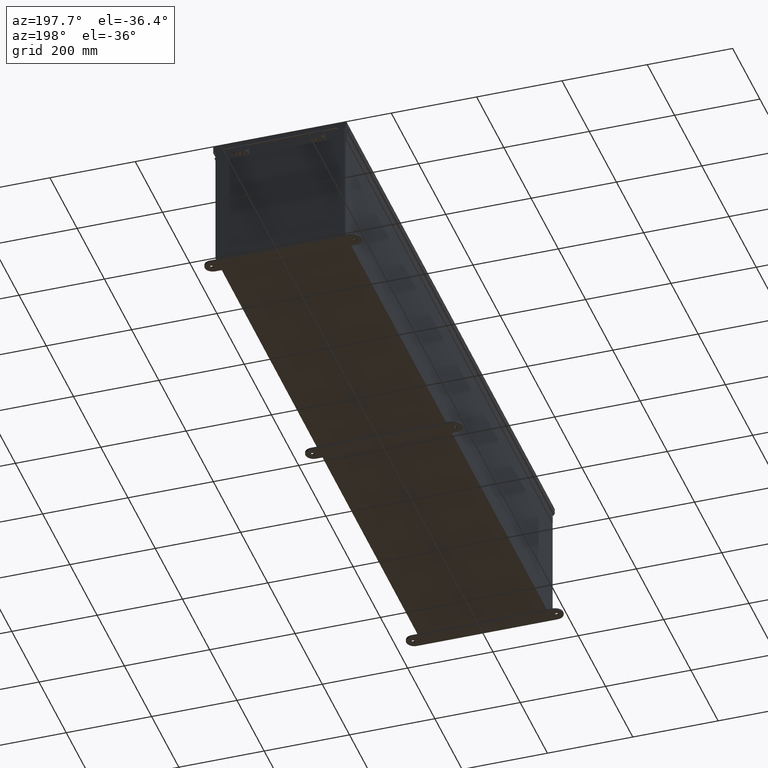
[diagram: clean part render]
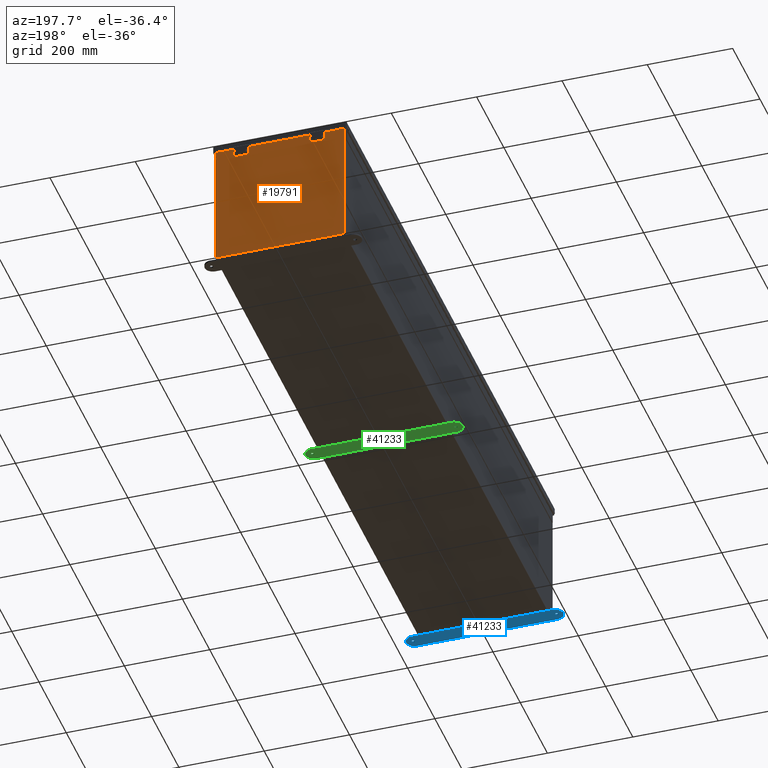
[diagram: same view with three faces highlighted in distinct colors, each labeled with its STEP entity id]
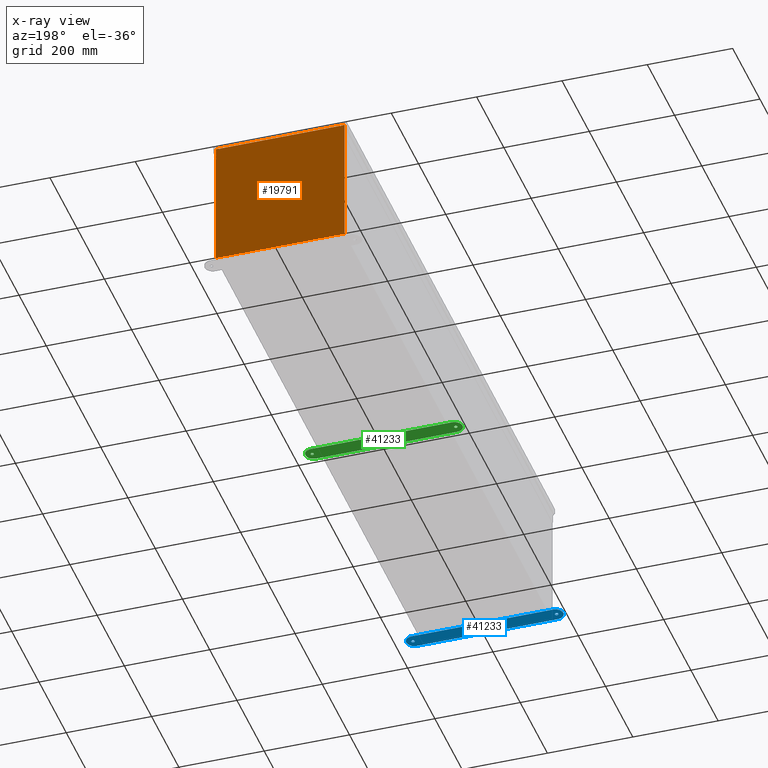
[diagram: x-ray of the same camera — body ghosted, the three highlighted faces saturated]
A machine part, auxiliary view with three faces highlighted in distinct colors.
The next image is the same camera in x-ray (body ghosted, the three faces saturated) — at least one of them is partly hidden behind the body in this view.
Their STEP definitions:

[orange] entity #19791 — the highlighted planar face has unit normal (0, -1, 0).
#473 = VECTOR ( 'NONE', #40752, 39.37007874015748100 ) ;
#2217 = CARTESIAN_POINT ( 'NONE',  ( -5.925300000000000000, 0.0000000000000000000, 5.925300000000002700 ) ) ;
#2291 = FACE_OUTER_BOUND ( 'NONE', #19772, .T. ) ;
#2365 = EDGE_CURVE ( 'NONE', #19320, #39952, #39111, .T. ) ;
#2399 = DIRECTION ( 'NONE',  ( 0.0000000000000000000, 0.0000000000000000000, -1.000000000000000000 ) ) ;
#2479 = VERTEX_POINT ( 'NONE', #20774 ) ;
#2612 = DIRECTION ( 'NONE',  ( 0.0000000000000000000, 0.0000000000000000000, -1.000000000000000000 ) ) ;
#3299 = VERTEX_POINT ( 'NONE', #18935 ) ;
#3359 = LINE ( 'NONE', #18377, #37137 ) ;
#5002 = CIRCLE ( 'NONE', #42503, 0.01867500000000058700 ) ;
#6107 = VERTEX_POINT ( 'NONE', #8690 ) ;
#6660 = ORIENTED_EDGE ( 'NONE', *, *, #36570, .F. ) ;
#6964 = EDGE_CURVE ( 'NONE', #43124, #26347, #27420, .T. ) ;
#7060 = VECTOR ( 'NONE', #17616, 39.37007874015748100 ) ;
#7256 = VECTOR ( 'NONE', #39886, 39.37007874015748100 ) ;
#7857 = CARTESIAN_POINT ( 'NONE',  ( -5.582299999999999200, 0.0000000000000000000, 5.912300000000006300 ) ) ;
#8687 = ORIENTED_EDGE ( 'NONE', *, *, #37343, .F. ) ;
#8690 = CARTESIAN_POINT ( 'NONE',  ( 5.582299999999999200, 0.0000000000000000000, 5.874950000000001000 ) ) ;
#8737 = DIRECTION ( 'NONE',  ( -0.0000000000000000000, 1.000000000000000000, -0.0000000000000000000 ) ) ;
#10145 = CARTESIAN_POINT ( 'NONE',  ( -5.582300000000000000, 0.0000000000000000000, 5.912300000000006300 ) ) ;
#10960 = EDGE_CURVE ( 'NONE', #2479, #25293, #25008, .T. ) ;
#11035 = DIRECTION ( 'NONE',  ( 0.0000000000000000000, -1.000000000000000000, 0.0000000000000000000 ) ) ;
#11445 = ORIENTED_EDGE ( 'NONE', *, *, #16492, .F. ) ;
#11591 = ORIENTED_EDGE ( 'NONE', *, *, #6964, .F. ) ;
#12787 = CARTESIAN_POINT ( 'NONE',  ( -5.582299999999999200, 0.0000000000000000000, 0.0000000000000000000 ) ) ;
#12885 = VECTOR ( 'NONE', #36439, 39.37007874015748100 ) ;
#14638 = EDGE_CURVE ( 'NONE', #31556, #3299, #23630, .T. ) ;
#15536 = CARTESIAN_POINT ( 'NONE',  ( -5.925300000000000000, 0.0000000000000000000, 5.925300000000002700 ) ) ;
#16459 = ORIENTED_EDGE ( 'NONE', *, *, #24284, .T. ) ;
#16492 = EDGE_CURVE ( 'NONE', #3299, #6107, #41384, .T. ) ;
#17294 = CARTESIAN_POINT ( 'NONE',  ( -5.925300000000000000, 0.0000000000000000000, 5.925300000000002700 ) ) ;
#17616 = DIRECTION ( 'NONE',  ( -1.000000000000000000, -0.0000000000000000000, -0.0000000000000000000 ) ) ;
#17664 = PLANE ( 'NONE',  #34506 ) ;
#18086 = CARTESIAN_POINT ( 'NONE',  ( -5.619649999999998300, 0.0000000000000000000, 5.874950000000001000 ) ) ;
#18377 = CARTESIAN_POINT ( 'NONE',  ( 5.925300000000000000, 0.0000000000000000000, 5.925299999999998200 ) ) ;
#18935 = CARTESIAN_POINT ( 'NONE',  ( 5.619650000000000000, 0.0000000000000000000, 5.874950000000001000 ) ) ;
#19320 = VERTEX_POINT ( 'NONE', #7857 ) ;
#19330 = ORIENTED_EDGE ( 'NONE', *, *, #2365, .T. ) ;
#19538 = EDGE_CURVE ( 'NONE', #31556, #34164, #38754, .T. ) ;
#19772 = EDGE_LOOP ( 'NONE', ( #11591, #6660, #8687, #19330, #42631, #11445, #35901, #35552, #23677, #39158, #20367, #16459 ) ) ;
#19791 = ADVANCED_FACE ( 'NONE', ( #2291 ), #17664, .F. ) ;
#20231 = VECTOR ( 'NONE', #34277, 39.37007874015748100 ) ;
#20288 = VERTEX_POINT ( 'NONE', #15536 ) ;
#20367 = ORIENTED_EDGE ( 'NONE', *, *, #26100, .T. ) ;
#20774 = CARTESIAN_POINT ( 'NONE',  ( 5.925300000000000000, 0.0000000000000000000, -5.925300000000001800 ) ) ;
#21118 = CARTESIAN_POINT ( 'NONE',  ( 5.619649999999999100, 0.0000000000000000000, 5.925299999999998200 ) ) ;
#21163 = VECTOR ( 'NONE', #30365, 39.37007874015748100 ) ;
#21276 = LINE ( 'NONE', #17294, #20231 ) ;
#21471 = VECTOR ( 'NONE', #2612, 39.37007874015748100 ) ;
#21730 = DIRECTION ( 'NONE',  ( 0.0000000000000000000, 0.0000000000000000000, -1.000000000000000000 ) ) ;
#21742 = DIRECTION ( 'NONE',  ( 0.0000000000000000000, 0.0000000000000000000, -1.000000000000000000 ) ) ;
#22639 = DIRECTION ( 'NONE',  ( -0.0000000000000000000, 1.000000000000000000, -0.0000000000000000000 ) ) ;
#22869 = VERTEX_POINT ( 'NONE', #27725 ) ;
#23630 = LINE ( 'NONE', #41941, #41565 ) ;
#23677 = ORIENTED_EDGE ( 'NONE', *, *, #25631, .T. ) ;
#24251 = AXIS2_PLACEMENT_3D ( 'NONE', #42817, #22639, #2399 ) ;
#24274 = CARTESIAN_POINT ( 'NONE',  ( -5.925300000000000000, 0.0000000000000000000, -5.925300000000001800 ) ) ;
#24284 = EDGE_CURVE ( 'NONE', #20288, #26347, #32577, .T. ) ;
#24457 = CARTESIAN_POINT ( 'NONE',  ( 0.0000000000000000000, 0.0000000000000000000, 0.0000000000000000000 ) ) ;
#25008 = LINE ( 'NONE', #24274, #7060 ) ;
#25293 = VERTEX_POINT ( 'NONE', #34461 ) ;
#25631 = EDGE_CURVE ( 'NONE', #34164, #2479, #3359, .T. ) ;
#25993 = CARTESIAN_POINT ( 'NONE',  ( 5.925300000000000000, 0.0000000000000000000, 5.925299999999998200 ) ) ;
#26100 = EDGE_CURVE ( 'NONE', #25293, #20288, #21276, .T. ) ;
#26347 = VERTEX_POINT ( 'NONE', #42642 ) ;
#27420 = LINE ( 'NONE', #37373, #473 ) ;
#27725 = CARTESIAN_POINT ( 'NONE',  ( -5.582299999999999200, 0.0000000000000000000, 5.874950000000001000 ) ) ;
#28951 = CARTESIAN_POINT ( 'NONE',  ( -5.600974999999998300, 0.0000000000000000000, 5.874950000000001000 ) ) ;
#30365 = DIRECTION ( 'NONE',  ( 1.000000000000000000, 0.0000000000000000000, 0.0000000000000000000 ) ) ;
#30454 = LINE ( 'NONE', #12787, #21471 ) ;
#31556 = VERTEX_POINT ( 'NONE', #21118 ) ;
#32360 = DIRECTION ( 'NONE',  ( 0.0000000000000000000, 0.0000000000000000000, -1.000000000000000000 ) ) ;
#32577 = LINE ( 'NONE', #2217, #40456 ) ;
#34164 = VERTEX_POINT ( 'NONE', #25993 ) ;
#34193 = LINE ( 'NONE', #36505, #7256 ) ;
#34277 = DIRECTION ( 'NONE',  ( -0.0000000000000000000, -0.0000000000000000000, 1.000000000000000000 ) ) ;
#34461 = CARTESIAN_POINT ( 'NONE',  ( -5.925300000000000000, 0.0000000000000000000, -5.925300000000001800 ) ) ;
#34506 = AXIS2_PLACEMENT_3D ( 'NONE', #24457, #11035, #34639 ) ;
#34639 = DIRECTION ( 'NONE',  ( 0.0000000000000000000, -0.0000000000000000000, -1.000000000000000000 ) ) ;
#35552 = ORIENTED_EDGE ( 'NONE', *, *, #19538, .T. ) ;
#35901 = ORIENTED_EDGE ( 'NONE', *, *, #14638, .F. ) ;
#36439 = DIRECTION ( 'NONE',  ( 1.000000000000000000, 0.0000000000000000000, -1.844192188523290300E-016 ) ) ;
#36505 = CARTESIAN_POINT ( 'NONE',  ( 5.582300000000000000, 0.0000000000000000000, 0.0000000000000000000 ) ) ;
#36570 = EDGE_CURVE ( 'NONE', #22869, #43124, #5002, .T. ) ;
#37137 = VECTOR ( 'NONE', #21742, 39.37007874015748100 ) ;
#37343 = EDGE_CURVE ( 'NONE', #19320, #22869, #30454, .T. ) ;
#37373 = CARTESIAN_POINT ( 'NONE',  ( -5.619649999999999100, 0.0000000000000000000, 0.0000000000000000000 ) ) ;
#38057 = CARTESIAN_POINT ( 'NONE',  ( 5.582300000000000000, 0.0000000000000000000, 5.912300000000000100 ) ) ;
#38754 = LINE ( 'NONE', #43222, #12885 ) ;
#39111 = LINE ( 'NONE', #10145, #21163 ) ;
#39158 = ORIENTED_EDGE ( 'NONE', *, *, #10960, .T. ) ;
#39419 = DIRECTION ( 'NONE',  ( 1.000000000000000000, 0.0000000000000000000, -1.844192188523290300E-016 ) ) ;
#39886 = DIRECTION ( 'NONE',  ( 0.0000000000000000000, 0.0000000000000000000, 1.000000000000000000 ) ) ;
#39952 = VERTEX_POINT ( 'NONE', #38057 ) ;
#40456 = VECTOR ( 'NONE', #39419, 39.37007874015748100 ) ;
#40752 = DIRECTION ( 'NONE',  ( 0.0000000000000000000, 0.0000000000000000000, 1.000000000000000000 ) ) ;
#41384 = CIRCLE ( 'NONE', #24251, 0.01867500000000058700 ) ;
#41565 = VECTOR ( 'NONE', #21730, 39.37007874015748100 ) ;
#41941 = CARTESIAN_POINT ( 'NONE',  ( 5.619650000000000000, 0.0000000000000000000, 0.0000000000000000000 ) ) ;
#42503 = AXIS2_PLACEMENT_3D ( 'NONE', #28951, #8737, #32360 ) ;
#42631 = ORIENTED_EDGE ( 'NONE', *, *, #43390, .F. ) ;
#42642 = CARTESIAN_POINT ( 'NONE',  ( -5.619649999999999100, 0.0000000000000000000, 5.925300000000002700 ) ) ;
#42817 = CARTESIAN_POINT ( 'NONE',  ( 5.600975000000000000, 0.0000000000000000000, 5.874950000000001000 ) ) ;
#43124 = VERTEX_POINT ( 'NONE', #18086 ) ;
#43222 = CARTESIAN_POINT ( 'NONE',  ( -5.925300000000000000, 0.0000000000000000000, 5.925300000000002700 ) ) ;
#43390 = EDGE_CURVE ( 'NONE', #6107, #39952, #34193, .T. ) ;

[blue] entity #41233 — the highlighted planar face has unit normal (0, 0, -1).
#29 = FACE_BOUND ( 'NONE', #17075, .T. ) ;
#509 = CARTESIAN_POINT ( 'NONE',  ( -6.500000000000000000, -0.3379059350503874600, -0.1345000000000000100 ) ) ;
#1076 = FACE_BOUND ( 'NONE', #22877, .T. ) ;
#1161 = DIRECTION ( 'NONE',  ( -1.000000000000000000, 0.0000000000000000000, 0.0000000000000000000 ) ) ;
#1381 = ORIENTED_EDGE ( 'NONE', *, *, #39097, .F. ) ;
#1512 = DIRECTION ( 'NONE',  ( -0.0000000000000000000, 0.0000000000000000000, -1.000000000000000000 ) ) ;
#2923 = DIRECTION ( 'NONE',  ( -0.0000000000000000000, -0.0000000000000000000, -1.000000000000000000 ) ) ;
#3459 = DIRECTION ( 'NONE',  ( 0.0000000000000000000, 0.0000000000000000000, 1.000000000000000000 ) ) ;
#3528 = VECTOR ( 'NONE', #13636, 39.37007874015748100 ) ;
#3579 = CARTESIAN_POINT ( 'NONE',  ( 6.625000000000000900, 0.4120940649496083700, -0.1345000000000000100 ) ) ;
#3749 = AXIS2_PLACEMENT_3D ( 'NONE', #12362, #35955, #15739 ) ;
#4420 = ORIENTED_EDGE ( 'NONE', *, *, #21518, .T. ) ;
#4484 = CARTESIAN_POINT ( 'NONE',  ( 6.500000000000000000, -0.3379059350503891300, -0.1345000000000000100 ) ) ;
#4570 = EDGE_CURVE ( 'NONE', #10811, #13532, #18344, .T. ) ;
#5499 = CIRCLE ( 'NONE', #33064, 0.1564999999999992800 ) ;
#5572 = DIRECTION ( 'NONE',  ( 0.0000000000000000000, 0.0000000000000000000, 1.000000000000000000 ) ) ;
#6965 = DIRECTION ( 'NONE',  ( -1.000000000000000000, 0.0000000000000000000, 0.0000000000000000000 ) ) ;
#8120 = DIRECTION ( 'NONE',  ( 0.0000000000000000000, 0.0000000000000000000, 1.000000000000000000 ) ) ;
#8821 = AXIS2_PLACEMENT_3D ( 'NONE', #23696, #3459, #27063 ) ;
#9865 = VECTOR ( 'NONE', #33569, 39.37007874015748100 ) ;
#10180 = CIRCLE ( 'NONE', #38406, 0.1564999999999992800 ) ;
#10811 = VERTEX_POINT ( 'NONE', #30189 ) ;
#11053 = VERTEX_POINT ( 'NONE', #4484 ) ;
#12362 = CARTESIAN_POINT ( 'NONE',  ( -6.625000000000000900, 0.4120940649496083700, -0.1345000000000000100 ) ) ;
#13532 = VERTEX_POINT ( 'NONE', #19889 ) ;
#13636 = DIRECTION ( 'NONE',  ( -1.000000000000000000, -1.260852920152736700E-016, -0.0000000000000000000 ) ) ;
#14912 = PLANE ( 'NONE',  #40124 ) ;
#15166 = AXIS2_PLACEMENT_3D ( 'NONE', #25798, #5572, #29190 ) ;
#15739 = DIRECTION ( 'NONE',  ( -1.000000000000000000, 0.0000000000000000000, 0.0000000000000000000 ) ) ;
#16867 = AXIS2_PLACEMENT_3D ( 'NONE', #41629, #21417, #1161 ) ;
#16924 = FACE_OUTER_BOUND ( 'NONE', #22186, .T. ) ;
#17075 = EDGE_LOOP ( 'NONE', ( #4420, #27168 ) ) ;
#17213 = ORIENTED_EDGE ( 'NONE', *, *, #4570, .F. ) ;
#17312 = EDGE_CURVE ( 'NONE', #37252, #34389, #5499, .T. ) ;
#18344 = CIRCLE ( 'NONE', #16867, 0.7500000000000015500 ) ;
#19889 = CARTESIAN_POINT ( 'NONE',  ( 6.500000000000000000, 1.162094064949614100, -0.1345000000000000100 ) ) ;
#20243 = CIRCLE ( 'NONE', #15166, 0.7500000000000015500 ) ;
#21417 = DIRECTION ( 'NONE',  ( 0.0000000000000000000, 0.0000000000000000000, 1.000000000000000000 ) ) ;
#21518 = EDGE_CURVE ( 'NONE', #34047, #29144, #40149, .T. ) ;
#21725 = CARTESIAN_POINT ( 'NONE',  ( 6.500000000000000000, 0.4120940649496125900, -0.1345000000000000100 ) ) ;
#22087 = CIRCLE ( 'NONE', #8821, 0.7499999999999993300 ) ;
#22186 = EDGE_LOOP ( 'NONE', ( #1381, #28727, #42555, #42441, #17213 ) ) ;
#22877 = EDGE_LOOP ( 'NONE', ( #35887, #40822 ) ) ;
#23168 = CARTESIAN_POINT ( 'NONE',  ( 6.625000000000000900, 0.4120940649496083700, -0.1345000000000000100 ) ) ;
#23694 = CARTESIAN_POINT ( 'NONE',  ( -6.500000000000000000, 1.162094064949612300, -0.1345000000000000100 ) ) ;
#23696 = CARTESIAN_POINT ( 'NONE',  ( -6.500000000000000000, 0.4120940649496124300, -0.1345000000000000100 ) ) ;
#24060 = CARTESIAN_POINT ( 'NONE',  ( 6.781499999999999400, 0.4120940649496083700, -0.1345000000000000100 ) ) ;
#24271 = CIRCLE ( 'NONE', #30844, 0.1564999999999992800 ) ;
#25140 = DIRECTION ( 'NONE',  ( -1.000000000000000000, 0.0000000000000000000, 0.0000000000000000000 ) ) ;
#25422 = CARTESIAN_POINT ( 'NONE',  ( -6.781499999999999400, 0.4120940649496083700, -0.1345000000000000100 ) ) ;
#25798 = CARTESIAN_POINT ( 'NONE',  ( 6.500000000000000000, 0.4120940649496125900, -0.1345000000000000100 ) ) ;
#26179 = EDGE_CURVE ( 'NONE', #29144, #34047, #10180, .T. ) ;
#26550 = DIRECTION ( 'NONE',  ( -1.000000000000000000, 0.0000000000000000000, 0.0000000000000000000 ) ) ;
#26926 = CARTESIAN_POINT ( 'NONE',  ( -6.500000000000000000, -0.3379059350503874600, -0.1345000000000000100 ) ) ;
#27063 = DIRECTION ( 'NONE',  ( 1.000000000000000000, 0.0000000000000000000, 0.0000000000000000000 ) ) ;
#27168 = ORIENTED_EDGE ( 'NONE', *, *, #26179, .T. ) ;
#27178 = DIRECTION ( 'NONE',  ( -0.0000000000000000000, -0.0000000000000000000, -1.000000000000000000 ) ) ;
#28354 = CARTESIAN_POINT ( 'NONE',  ( -6.625000000000000900, 0.4120940649496083700, -0.1345000000000000100 ) ) ;
#28727 = ORIENTED_EDGE ( 'NONE', *, *, #30641, .F. ) ;
#28816 = EDGE_CURVE ( 'NONE', #37183, #37594, #22087, .T. ) ;
#29144 = VERTEX_POINT ( 'NONE', #25422 ) ;
#29190 = DIRECTION ( 'NONE',  ( -1.000000000000000000, 0.0000000000000000000, 0.0000000000000000000 ) ) ;
#30189 = CARTESIAN_POINT ( 'NONE',  ( 7.250000000000001800, 0.4120940649496125900, -0.1345000000000000100 ) ) ;
#30641 = EDGE_CURVE ( 'NONE', #37594, #11053, #36785, .T. ) ;
#30844 = AXIS2_PLACEMENT_3D ( 'NONE', #23168, #2923, #26550 ) ;
#31762 = DIRECTION ( 'NONE',  ( -1.000000000000000000, 0.0000000000000000000, 0.0000000000000000000 ) ) ;
#32604 = CARTESIAN_POINT ( 'NONE',  ( 6.468500000000001500, 0.4120940649496083700, -0.1345000000000000100 ) ) ;
#33064 = AXIS2_PLACEMENT_3D ( 'NONE', #3579, #27178, #6965 ) ;
#33569 = DIRECTION ( 'NONE',  ( 1.000000000000000000, -1.260852920152736700E-016, 0.0000000000000000000 ) ) ;
#34047 = VERTEX_POINT ( 'NONE', #42083 ) ;
#34389 = VERTEX_POINT ( 'NONE', #24060 ) ;
#35463 = EDGE_CURVE ( 'NONE', #13532, #37183, #38365, .T. ) ;
#35887 = ORIENTED_EDGE ( 'NONE', *, *, #42003, .F. ) ;
#35955 = DIRECTION ( 'NONE',  ( 0.0000000000000000000, 0.0000000000000000000, 1.000000000000000000 ) ) ;
#36785 = LINE ( 'NONE', #26926, #9865 ) ;
#37183 = VERTEX_POINT ( 'NONE', #42164 ) ;
#37252 = VERTEX_POINT ( 'NONE', #32604 ) ;
#37594 = VERTEX_POINT ( 'NONE', #509 ) ;
#38365 = LINE ( 'NONE', #23694, #3528 ) ;
#38406 = AXIS2_PLACEMENT_3D ( 'NONE', #28354, #8120, #31762 ) ;
#39097 = EDGE_CURVE ( 'NONE', #11053, #10811, #20243, .T. ) ;
#40124 = AXIS2_PLACEMENT_3D ( 'NONE', #21725, #1512, #25140 ) ;
#40149 = CIRCLE ( 'NONE', #3749, 0.1564999999999992800 ) ;
#40822 = ORIENTED_EDGE ( 'NONE', *, *, #17312, .F. ) ;
#41233 = ADVANCED_FACE ( 'NONE', ( #16924, #29, #1076 ), #14912, .T. ) ;
#41629 = CARTESIAN_POINT ( 'NONE',  ( 6.500000000000000000, 0.4120940649496125900, -0.1345000000000000100 ) ) ;
#42003 = EDGE_CURVE ( 'NONE', #34389, #37252, #24271, .T. ) ;
#42083 = CARTESIAN_POINT ( 'NONE',  ( -6.468500000000001500, 0.4120940649496083700, -0.1345000000000000100 ) ) ;
#42164 = CARTESIAN_POINT ( 'NONE',  ( -6.500000000000000000, 1.162094064949612300, -0.1345000000000000100 ) ) ;
#42441 = ORIENTED_EDGE ( 'NONE', *, *, #35463, .F. ) ;
#42555 = ORIENTED_EDGE ( 'NONE', *, *, #28816, .F. ) ;

[green] entity #41233 — the highlighted planar face has unit normal (0, 0, -1).
#29 = FACE_BOUND ( 'NONE', #17075, .T. ) ;
#509 = CARTESIAN_POINT ( 'NONE',  ( -6.500000000000000000, -0.3379059350503874600, -0.1345000000000000100 ) ) ;
#1076 = FACE_BOUND ( 'NONE', #22877, .T. ) ;
#1161 = DIRECTION ( 'NONE',  ( -1.000000000000000000, 0.0000000000000000000, 0.0000000000000000000 ) ) ;
#1381 = ORIENTED_EDGE ( 'NONE', *, *, #39097, .F. ) ;
#1512 = DIRECTION ( 'NONE',  ( -0.0000000000000000000, 0.0000000000000000000, -1.000000000000000000 ) ) ;
#2923 = DIRECTION ( 'NONE',  ( -0.0000000000000000000, -0.0000000000000000000, -1.000000000000000000 ) ) ;
#3459 = DIRECTION ( 'NONE',  ( 0.0000000000000000000, 0.0000000000000000000, 1.000000000000000000 ) ) ;
#3528 = VECTOR ( 'NONE', #13636, 39.37007874015748100 ) ;
#3579 = CARTESIAN_POINT ( 'NONE',  ( 6.625000000000000900, 0.4120940649496083700, -0.1345000000000000100 ) ) ;
#3749 = AXIS2_PLACEMENT_3D ( 'NONE', #12362, #35955, #15739 ) ;
#4420 = ORIENTED_EDGE ( 'NONE', *, *, #21518, .T. ) ;
#4484 = CARTESIAN_POINT ( 'NONE',  ( 6.500000000000000000, -0.3379059350503891300, -0.1345000000000000100 ) ) ;
#4570 = EDGE_CURVE ( 'NONE', #10811, #13532, #18344, .T. ) ;
#5499 = CIRCLE ( 'NONE', #33064, 0.1564999999999992800 ) ;
#5572 = DIRECTION ( 'NONE',  ( 0.0000000000000000000, 0.0000000000000000000, 1.000000000000000000 ) ) ;
#6965 = DIRECTION ( 'NONE',  ( -1.000000000000000000, 0.0000000000000000000, 0.0000000000000000000 ) ) ;
#8120 = DIRECTION ( 'NONE',  ( 0.0000000000000000000, 0.0000000000000000000, 1.000000000000000000 ) ) ;
#8821 = AXIS2_PLACEMENT_3D ( 'NONE', #23696, #3459, #27063 ) ;
#9865 = VECTOR ( 'NONE', #33569, 39.37007874015748100 ) ;
#10180 = CIRCLE ( 'NONE', #38406, 0.1564999999999992800 ) ;
#10811 = VERTEX_POINT ( 'NONE', #30189 ) ;
#11053 = VERTEX_POINT ( 'NONE', #4484 ) ;
#12362 = CARTESIAN_POINT ( 'NONE',  ( -6.625000000000000900, 0.4120940649496083700, -0.1345000000000000100 ) ) ;
#13532 = VERTEX_POINT ( 'NONE', #19889 ) ;
#13636 = DIRECTION ( 'NONE',  ( -1.000000000000000000, -1.260852920152736700E-016, -0.0000000000000000000 ) ) ;
#14912 = PLANE ( 'NONE',  #40124 ) ;
#15166 = AXIS2_PLACEMENT_3D ( 'NONE', #25798, #5572, #29190 ) ;
#15739 = DIRECTION ( 'NONE',  ( -1.000000000000000000, 0.0000000000000000000, 0.0000000000000000000 ) ) ;
#16867 = AXIS2_PLACEMENT_3D ( 'NONE', #41629, #21417, #1161 ) ;
#16924 = FACE_OUTER_BOUND ( 'NONE', #22186, .T. ) ;
#17075 = EDGE_LOOP ( 'NONE', ( #4420, #27168 ) ) ;
#17213 = ORIENTED_EDGE ( 'NONE', *, *, #4570, .F. ) ;
#17312 = EDGE_CURVE ( 'NONE', #37252, #34389, #5499, .T. ) ;
#18344 = CIRCLE ( 'NONE', #16867, 0.7500000000000015500 ) ;
#19889 = CARTESIAN_POINT ( 'NONE',  ( 6.500000000000000000, 1.162094064949614100, -0.1345000000000000100 ) ) ;
#20243 = CIRCLE ( 'NONE', #15166, 0.7500000000000015500 ) ;
#21417 = DIRECTION ( 'NONE',  ( 0.0000000000000000000, 0.0000000000000000000, 1.000000000000000000 ) ) ;
#21518 = EDGE_CURVE ( 'NONE', #34047, #29144, #40149, .T. ) ;
#21725 = CARTESIAN_POINT ( 'NONE',  ( 6.500000000000000000, 0.4120940649496125900, -0.1345000000000000100 ) ) ;
#22087 = CIRCLE ( 'NONE', #8821, 0.7499999999999993300 ) ;
#22186 = EDGE_LOOP ( 'NONE', ( #1381, #28727, #42555, #42441, #17213 ) ) ;
#22877 = EDGE_LOOP ( 'NONE', ( #35887, #40822 ) ) ;
#23168 = CARTESIAN_POINT ( 'NONE',  ( 6.625000000000000900, 0.4120940649496083700, -0.1345000000000000100 ) ) ;
#23694 = CARTESIAN_POINT ( 'NONE',  ( -6.500000000000000000, 1.162094064949612300, -0.1345000000000000100 ) ) ;
#23696 = CARTESIAN_POINT ( 'NONE',  ( -6.500000000000000000, 0.4120940649496124300, -0.1345000000000000100 ) ) ;
#24060 = CARTESIAN_POINT ( 'NONE',  ( 6.781499999999999400, 0.4120940649496083700, -0.1345000000000000100 ) ) ;
#24271 = CIRCLE ( 'NONE', #30844, 0.1564999999999992800 ) ;
#25140 = DIRECTION ( 'NONE',  ( -1.000000000000000000, 0.0000000000000000000, 0.0000000000000000000 ) ) ;
#25422 = CARTESIAN_POINT ( 'NONE',  ( -6.781499999999999400, 0.4120940649496083700, -0.1345000000000000100 ) ) ;
#25798 = CARTESIAN_POINT ( 'NONE',  ( 6.500000000000000000, 0.4120940649496125900, -0.1345000000000000100 ) ) ;
#26179 = EDGE_CURVE ( 'NONE', #29144, #34047, #10180, .T. ) ;
#26550 = DIRECTION ( 'NONE',  ( -1.000000000000000000, 0.0000000000000000000, 0.0000000000000000000 ) ) ;
#26926 = CARTESIAN_POINT ( 'NONE',  ( -6.500000000000000000, -0.3379059350503874600, -0.1345000000000000100 ) ) ;
#27063 = DIRECTION ( 'NONE',  ( 1.000000000000000000, 0.0000000000000000000, 0.0000000000000000000 ) ) ;
#27168 = ORIENTED_EDGE ( 'NONE', *, *, #26179, .T. ) ;
#27178 = DIRECTION ( 'NONE',  ( -0.0000000000000000000, -0.0000000000000000000, -1.000000000000000000 ) ) ;
#28354 = CARTESIAN_POINT ( 'NONE',  ( -6.625000000000000900, 0.4120940649496083700, -0.1345000000000000100 ) ) ;
#28727 = ORIENTED_EDGE ( 'NONE', *, *, #30641, .F. ) ;
#28816 = EDGE_CURVE ( 'NONE', #37183, #37594, #22087, .T. ) ;
#29144 = VERTEX_POINT ( 'NONE', #25422 ) ;
#29190 = DIRECTION ( 'NONE',  ( -1.000000000000000000, 0.0000000000000000000, 0.0000000000000000000 ) ) ;
#30189 = CARTESIAN_POINT ( 'NONE',  ( 7.250000000000001800, 0.4120940649496125900, -0.1345000000000000100 ) ) ;
#30641 = EDGE_CURVE ( 'NONE', #37594, #11053, #36785, .T. ) ;
#30844 = AXIS2_PLACEMENT_3D ( 'NONE', #23168, #2923, #26550 ) ;
#31762 = DIRECTION ( 'NONE',  ( -1.000000000000000000, 0.0000000000000000000, 0.0000000000000000000 ) ) ;
#32604 = CARTESIAN_POINT ( 'NONE',  ( 6.468500000000001500, 0.4120940649496083700, -0.1345000000000000100 ) ) ;
#33064 = AXIS2_PLACEMENT_3D ( 'NONE', #3579, #27178, #6965 ) ;
#33569 = DIRECTION ( 'NONE',  ( 1.000000000000000000, -1.260852920152736700E-016, 0.0000000000000000000 ) ) ;
#34047 = VERTEX_POINT ( 'NONE', #42083 ) ;
#34389 = VERTEX_POINT ( 'NONE', #24060 ) ;
#35463 = EDGE_CURVE ( 'NONE', #13532, #37183, #38365, .T. ) ;
#35887 = ORIENTED_EDGE ( 'NONE', *, *, #42003, .F. ) ;
#35955 = DIRECTION ( 'NONE',  ( 0.0000000000000000000, 0.0000000000000000000, 1.000000000000000000 ) ) ;
#36785 = LINE ( 'NONE', #26926, #9865 ) ;
#37183 = VERTEX_POINT ( 'NONE', #42164 ) ;
#37252 = VERTEX_POINT ( 'NONE', #32604 ) ;
#37594 = VERTEX_POINT ( 'NONE', #509 ) ;
#38365 = LINE ( 'NONE', #23694, #3528 ) ;
#38406 = AXIS2_PLACEMENT_3D ( 'NONE', #28354, #8120, #31762 ) ;
#39097 = EDGE_CURVE ( 'NONE', #11053, #10811, #20243, .T. ) ;
#40124 = AXIS2_PLACEMENT_3D ( 'NONE', #21725, #1512, #25140 ) ;
#40149 = CIRCLE ( 'NONE', #3749, 0.1564999999999992800 ) ;
#40822 = ORIENTED_EDGE ( 'NONE', *, *, #17312, .F. ) ;
#41233 = ADVANCED_FACE ( 'NONE', ( #16924, #29, #1076 ), #14912, .T. ) ;
#41629 = CARTESIAN_POINT ( 'NONE',  ( 6.500000000000000000, 0.4120940649496125900, -0.1345000000000000100 ) ) ;
#42003 = EDGE_CURVE ( 'NONE', #34389, #37252, #24271, .T. ) ;
#42083 = CARTESIAN_POINT ( 'NONE',  ( -6.468500000000001500, 0.4120940649496083700, -0.1345000000000000100 ) ) ;
#42164 = CARTESIAN_POINT ( 'NONE',  ( -6.500000000000000000, 1.162094064949612300, -0.1345000000000000100 ) ) ;
#42441 = ORIENTED_EDGE ( 'NONE', *, *, #35463, .F. ) ;
#42555 = ORIENTED_EDGE ( 'NONE', *, *, #28816, .F. ) ;